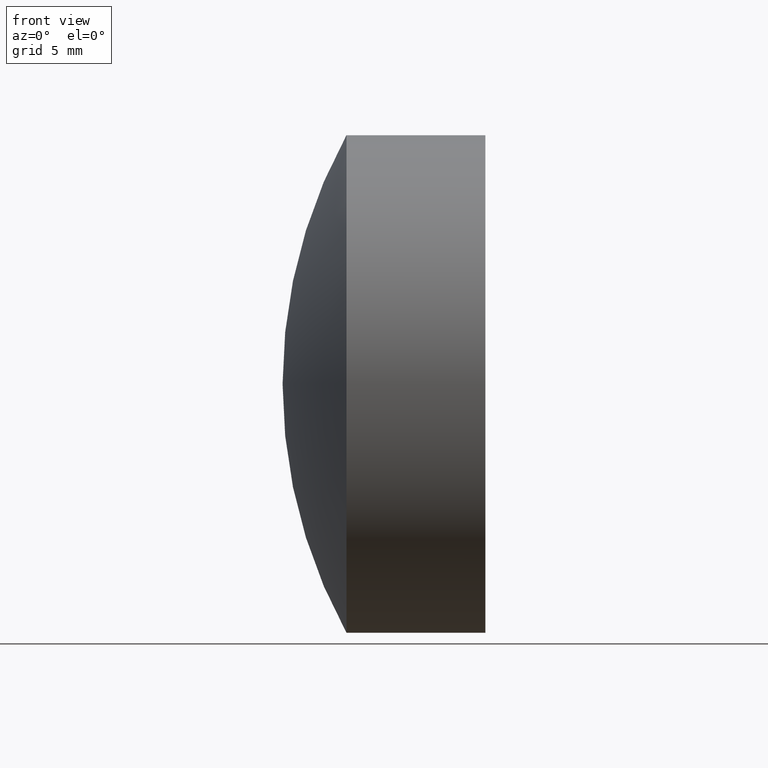
[diagram: clean part render]
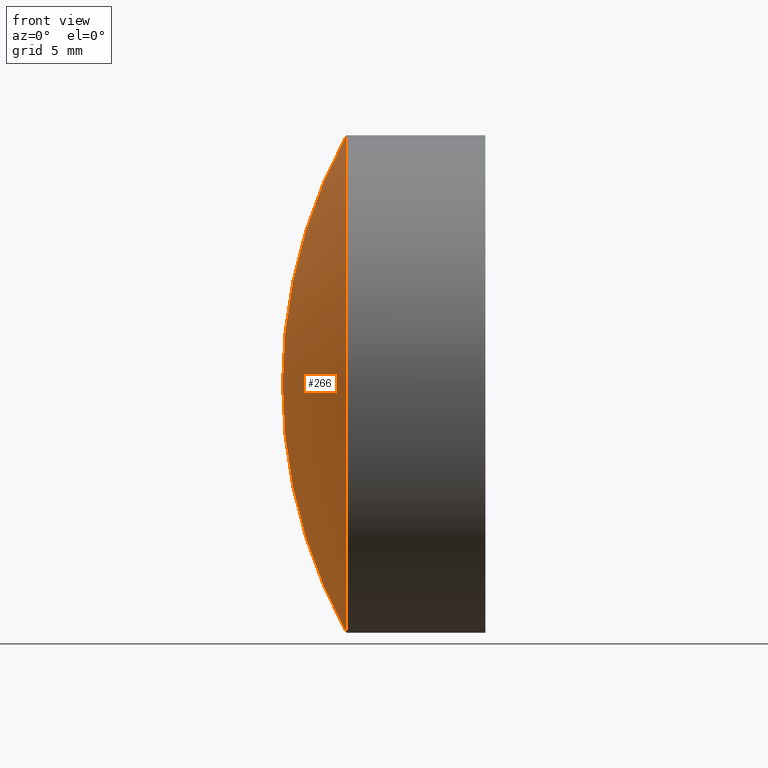
[diagram: same view with one face highlighted and labeled with its STEP entity id]
A machine part, front view. The second image highlights one B-rep face of the part: STEP entity #266.
In plain terms, the highlighted spherical surface has radius 26.36 mm.
Its self-contained STEP definition (entity closure, byte-faithful):
#2 = ORIENTED_EDGE ( 'NONE', *, *, #245, .T. ) ;
#16 = VERTEX_POINT ( 'NONE', #69 ) ;
#37 = DIRECTION ( 'NONE',  ( -1.000000000000000000, -0.0000000000000000000, -0.0000000000000000000 ) ) ;
#41 = CARTESIAN_POINT ( 'NONE',  ( 60.59024643027568400, 0.0000000000000000000, 6.240728188754496800E-016 ) ) ;
#47 = DIRECTION ( 'NONE',  ( 0.0000000000000000000, 0.0000000000000000000, -1.000000000000000000 ) ) ;
#62 = CIRCLE ( 'NONE', #173, 26.36000000000001000 ) ;
#69 = CARTESIAN_POINT ( 'NONE',  ( 34.23024643027567700, 0.0000000000000000000, -9.900116624007624700E-016 ) ) ;
#93 = CARTESIAN_POINT ( 'NONE',  ( 37.49133736512716600, 0.0000000000000000000, 0.0000000000000000000 ) ) ;
#94 = SPHERICAL_SURFACE ( 'NONE', #162, 26.36000000000001000 ) ;
#109 = CIRCLE ( 'NONE', #336, 26.36000000000001000 ) ;
#131 = FACE_OUTER_BOUND ( 'NONE', #287, .T. ) ;
#137 = CIRCLE ( 'NONE', #151, 12.69999999999999400 ) ;
#151 = AXIS2_PLACEMENT_3D ( 'NONE', #93, #37, #332 ) ;
#156 = DIRECTION ( 'NONE',  ( 0.0000000000000000000, 0.0000000000000000000, 1.000000000000000000 ) ) ;
#160 = VERTEX_POINT ( 'NONE', #346 ) ;
#162 = AXIS2_PLACEMENT_3D ( 'NONE', #333, #206, #47 ) ;
#166 = EDGE_CURVE ( 'NONE', #318, #16, #109, .T. ) ;
#173 = AXIS2_PLACEMENT_3D ( 'NONE', #205, #175, #156 ) ;
#175 = DIRECTION ( 'NONE',  ( 0.0000000000000000000, 1.000000000000000000, -0.0000000000000000000 ) ) ;
#179 = DIRECTION ( 'NONE',  ( 0.0000000000000000000, -1.000000000000000000, -1.224646799147353200E-016 ) ) ;
#205 = CARTESIAN_POINT ( 'NONE',  ( 60.59024643027568400, 0.0000000000000000000, 6.240728188754496800E-016 ) ) ;
#206 = DIRECTION ( 'NONE',  ( -0.0000000000000000000, -1.000000000000000000, -0.0000000000000000000 ) ) ;
#245 = EDGE_CURVE ( 'NONE', #160, #318, #137, .T. ) ;
#251 = ORIENTED_EDGE ( 'NONE', *, *, #262, .F. ) ;
#261 = CARTESIAN_POINT ( 'NONE',  ( 37.49133736512716600, -1.555301434917138000E-015, 12.69999999999999600 ) ) ;
#262 = EDGE_CURVE ( 'NONE', #160, #16, #62, .T. ) ;
#266 = ADVANCED_FACE ( 'NONE', ( #131 ), #94, .T. ) ;
#287 = EDGE_LOOP ( 'NONE', ( #2, #321, #251 ) ) ;
#306 = DIRECTION ( 'NONE',  ( 0.0000000000000000000, 1.224646799147353200E-016, -1.000000000000000000 ) ) ;
#318 = VERTEX_POINT ( 'NONE', #261 ) ;
#321 = ORIENTED_EDGE ( 'NONE', *, *, #166, .T. ) ;
#332 = DIRECTION ( 'NONE',  ( 0.0000000000000000000, 0.0000000000000000000, 1.000000000000000000 ) ) ;
#333 = CARTESIAN_POINT ( 'NONE',  ( 60.59024643027568400, 0.0000000000000000000, 6.240728188754496800E-016 ) ) ;
#336 = AXIS2_PLACEMENT_3D ( 'NONE', #41, #179, #306 ) ;
#346 = CARTESIAN_POINT ( 'NONE',  ( 37.49133736512716600, 0.0000000000000000000, -12.69999999999999600 ) ) ;